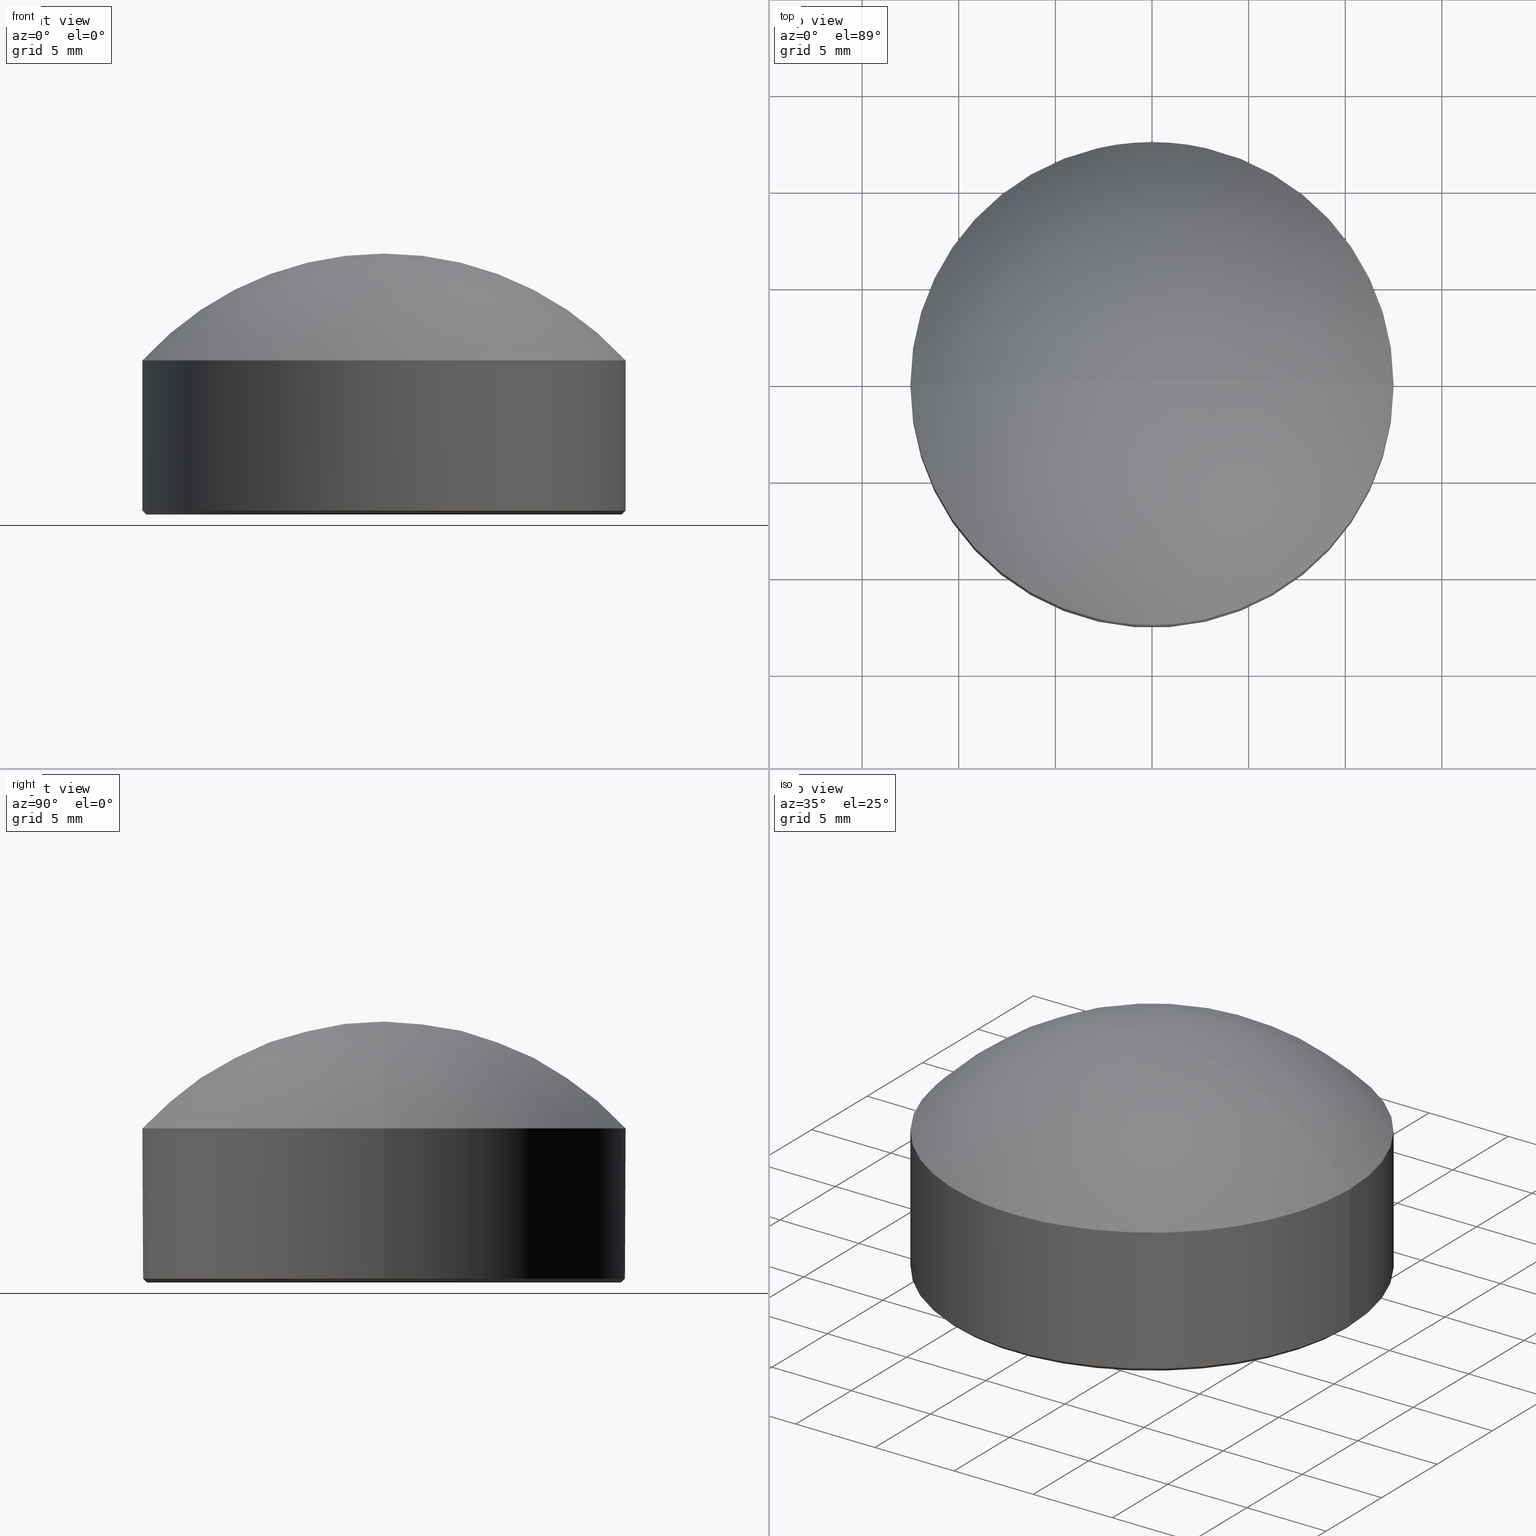
[diagram: canonical four-view strip — front | top / right | iso, engineering-drawing reading convention]
A machine part, canonical four-view strip (front | top / right | iso — engineering-drawing reading convention). The complete STEP part file that produces these views, byte-faithful:
ISO-10303-21;
HEADER;
FILE_DESCRIPTION (( 'STEP AP214' ),
    '1' );
FILE_NAME ('GLA11-025-18.75-H-VIS.STEP',
    '2024-08-09T08:37:02',
    ( 'Windows User' ),
    ( 'P R C' ),
    'SwSTEP 2.0',
    'SolidWorks 2022',
    '' );
FILE_SCHEMA (( 'AUTOMOTIVE_DESIGN' ));
ENDSEC;

DATA;
#1 = CARTESIAN_POINT ( 'NONE',  ( -12.50000000000000000, 0.000000000000000000, 7.969999999999999751 ) ) ;
#2 = LINE ( 'NONE', #100, #158 ) ;
#3 = DIRECTION ( 'NONE',  ( 0.000000000000000000, 0.000000000000000000, 1.000000000000000000 ) ) ;
#4 = CARTESIAN_POINT ( 'NONE',  ( 0.000000000000000000, 0.000000000000000000, 0.2000000000000074496 ) ) ;
#5 =( LENGTH_UNIT ( ) NAMED_UNIT ( * ) SI_UNIT ( .MILLI., .METRE. ) );
#6 = PRESENTATION_STYLE_ASSIGNMENT (( #206 ) ) ;
#7 = CARTESIAN_POINT ( 'NONE',  ( -12.29999999999999538, 1.518562030942717770E-15, 0.000000000000000000 ) ) ;
#8 = CIRCLE ( 'NONE', #137, 12.29999999999999538 ) ;
#9 = VERTEX_POINT ( 'NONE', #110 ) ;
#10 = APPLICATION_CONTEXT ( 'automotive_design' ) ;
#11 = ORIENTED_EDGE ( 'NONE', *, *, #167, .T. ) ;
#12 = MECHANICAL_DESIGN_GEOMETRIC_PRESENTATION_REPRESENTATION (  '', ( #208 ), #132 ) ;
#13 = CARTESIAN_POINT ( 'NONE',  ( 0.000000000000000000, 0.000000000000000000, -3.392486437613020378 ) ) ;
#14 = SPHERICAL_SURFACE ( 'NONE', #117, 16.89248643761301949 ) ;
#15 = ORIENTED_EDGE ( 'NONE', *, *, #32, .T. ) ;
#16 = CARTESIAN_POINT ( 'NONE',  ( 0.000000000000000000, 0.000000000000000000, 7.969999999999999751 ) ) ;
#17 = DIRECTION ( 'NONE',  ( 0.000000000000000000, 0.000000000000000000, 1.000000000000000000 ) ) ;
#18 = VECTOR ( 'NONE', #72, 1000.000000000000000 ) ;
#19 = EDGE_CURVE ( 'NONE', #40, #170, #193, .T. ) ;
#20 = FILL_AREA_STYLE ('',( #127 ) ) ;
#21 = PRODUCT_DEFINITION_SHAPE ( 'NONE', 'NONE',  #177 ) ;
#22 = ADVANCED_BREP_SHAPE_REPRESENTATION ( 'GLA11-025-18.75-H-VIS', ( #67, #24 ), #92 ) ;
#23 =( NAMED_UNIT ( * ) SI_UNIT ( $, .STERADIAN. ) SOLID_ANGLE_UNIT ( ) );
#24 = AXIS2_PLACEMENT_3D ( 'NONE', #104, #3, #85 ) ;
#25 = ORIENTED_EDGE ( 'NONE', *, *, #147, .F. ) ;
#26 = DIRECTION ( 'NONE',  ( -1.000000000000000000, 0.000000000000000000, 0.000000000000000000 ) ) ;
#27 = AXIS2_PLACEMENT_3D ( 'NONE', #13, #76, #134 ) ;
#28 = CARTESIAN_POINT ( 'NONE',  ( 12.50000000000000000, 1.530808498934191521E-15, 7.969999999999999751 ) ) ;
#29 = ADVANCED_FACE ( 'NONE', ( #114 ), #155, .T. ) ;
#30 = CARTESIAN_POINT ( 'NONE',  ( 12.29999999999999538, 0.000000000000000000, 0.000000000000000000 ) ) ;
#31 = DIRECTION ( 'NONE',  ( -1.224646799147353207E-16, -1.000000000000000000, -0.000000000000000000 ) ) ;
#32 = EDGE_CURVE ( 'NONE', #195, #214, #2, .T. ) ;
#33 = CARTESIAN_POINT ( 'NONE',  ( 0.000000000000000000, 0.000000000000000000, 0.000000000000000000 ) ) ;
#34 = APPLICATION_CONTEXT ( 'automotive_design' ) ;
#35 = AXIS2_PLACEMENT_3D ( 'NONE', #91, #187, #131 ) ;
#36 = FACE_OUTER_BOUND ( 'NONE', #154, .T. ) ;
#37 = AXIS2_PLACEMENT_3D ( 'NONE', #16, #166, #138 ) ;
#38 = ORIENTED_EDGE ( 'NONE', *, *, #147, .T. ) ;
#39 = EDGE_LOOP ( 'NONE', ( #165, #109, #150, #148 ) ) ;
#40 = VERTEX_POINT ( 'NONE', #81 ) ;
#41 = DIRECTION ( 'NONE',  ( 1.000000000000000000, 0.000000000000000000, 0.000000000000000000 ) ) ;
#42 = DIRECTION ( 'NONE',  ( 0.000000000000000000, 0.000000000000000000, 1.000000000000000000 ) ) ;
#43 = DIRECTION ( 'NONE',  ( -1.000000000000000000, 0.000000000000000000, 0.000000000000000000 ) ) ;
#44 = ORIENTED_EDGE ( 'NONE', *, *, #108, .F. ) ;
#45 = DIRECTION ( 'NONE',  ( -0.000000000000000000, -0.000000000000000000, 1.000000000000000000 ) ) ;
#46 = ORIENTED_EDGE ( 'NONE', *, *, #207, .T. ) ;
#47 = ADVANCED_FACE ( 'NONE', ( #66 ), #145, .T. ) ;
#48 = CIRCLE ( 'NONE', #179, 12.50000000000000000 ) ;
#49 = CARTESIAN_POINT ( 'NONE',  ( 0.000000000000000000, 0.000000000000000000, -3.392486437613020378 ) ) ;
#50 = VECTOR ( 'NONE', #157, 1000.000000000000000 ) ;
#51 = AXIS2_PLACEMENT_3D ( 'NONE', #200, #175, #41 ) ;
#52 = CIRCLE ( 'NONE', #69, 16.89248643761301949 ) ;
#53 = ORIENTED_EDGE ( 'NONE', *, *, #19, .F. ) ;
#54 = VERTEX_POINT ( 'NONE', #7 ) ;
#55 = CARTESIAN_POINT ( 'NONE',  ( 0.000000000000000000, 0.000000000000000000, -3.392486437613020378 ) ) ;
#56 = ORIENTED_EDGE ( 'NONE', *, *, #210, .F. ) ;
#57 = ORIENTED_EDGE ( 'NONE', *, *, #83, .T. ) ;
#58 = SPHERICAL_SURFACE ( 'NONE', #101, 16.89248643761301949 ) ;
#59 = CARTESIAN_POINT ( 'NONE',  ( 0.000000000000000000, 0.000000000000000000, 7.969999999999999751 ) ) ;
#60 = DIRECTION ( 'NONE',  ( 1.000000000000000000, -1.224646799147352961E-16, 0.000000000000000000 ) ) ;
#61 = ADVANCED_FACE ( 'NONE', ( #36 ), #182, .T. ) ;
#62 = CARTESIAN_POINT ( 'NONE',  ( 12.50000000000000000, 1.530808498934191521E-15, 7.969999999999999751 ) ) ;
#63 = CLOSED_SHELL ( 'NONE', ( #106, #143, #61, #29, #70, #116, #47 ) ) ;
#64 = CARTESIAN_POINT ( 'NONE',  ( 0.000000000000000000, 0.000000000000000000, 7.969999999999999751 ) ) ;
#65 = SURFACE_STYLE_FILL_AREA ( #190 ) ;
#66 = FACE_OUTER_BOUND ( 'NONE', #129, .T. ) ;
#67 = MANIFOLD_SOLID_BREP ( '����1', #63 ) ;
#68 =( LENGTH_UNIT ( ) NAMED_UNIT ( * ) SI_UNIT ( .MILLI., .METRE. ) );
#69 = AXIS2_PLACEMENT_3D ( 'NONE', #169, #31, #60 ) ;
#70 = ADVANCED_FACE ( 'NONE', ( #121 ), #211, .F. ) ;
#71 = ORIENTED_EDGE ( 'NONE', *, *, #113, .T. ) ;
#72 = DIRECTION ( 'NONE',  ( -0.000000000000000000, -0.000000000000000000, -1.000000000000000000 ) ) ;
#73 = EDGE_LOOP ( 'NONE', ( #44, #71, #38 ) ) ;
#74 = CARTESIAN_POINT ( 'NONE',  ( -1.034366472273142859E-15, 0.000000000000000000, 13.50000000000000000 ) ) ;
#75 = ORIENTED_EDGE ( 'NONE', *, *, #108, .T. ) ;
#76 = DIRECTION ( 'NONE',  ( 0.000000000000000000, 1.000000000000000000, 0.000000000000000000 ) ) ;
#77 = CIRCLE ( 'NONE', #27, 16.89248643761301949 ) ;
#78 = CARTESIAN_POINT ( 'NONE',  ( -12.50000000000000000, 1.530808498934191521E-15, 0.2000000000000074496 ) ) ;
#79 = MECHANICAL_DESIGN_GEOMETRIC_PRESENTATION_REPRESENTATION (  '', ( #189 ), #168 ) ;
#80 = LINE ( 'NONE', #28, #84 ) ;
#81 = CARTESIAN_POINT ( 'NONE',  ( -12.50000000000000000, 0.000000000000000000, 7.969999999999999751 ) ) ;
#82 = DIRECTION ( 'NONE',  ( 1.000000000000000000, 0.000000000000000000, 0.000000000000000000 ) ) ;
#83 = EDGE_CURVE ( 'NONE', #214, #9, #205, .T. ) ;
#84 = VECTOR ( 'NONE', #171, 1000.000000000000000 ) ;
#85 = DIRECTION ( 'NONE',  ( 1.000000000000000000, 0.000000000000000000, 0.000000000000000000 ) ) ;
#86 =( NAMED_UNIT ( * ) SI_UNIT ( $, .STERADIAN. ) SOLID_ANGLE_UNIT ( ) );
#87 = SURFACE_SIDE_STYLE ('',( #65 ) ) ;
#88 = SURFACE_SIDE_STYLE ('',( #125 ) ) ;
#89 = CIRCLE ( 'NONE', #37, 12.50000000000000000 ) ;
#90 = ORIENTED_EDGE ( 'NONE', *, *, #95, .T. ) ;
#91 = CARTESIAN_POINT ( 'NONE',  ( 0.000000000000000000, 0.000000000000000000, 0.2000000000000074496 ) ) ;
#92 =( GEOMETRIC_REPRESENTATION_CONTEXT ( 3 ) GLOBAL_UNCERTAINTY_ASSIGNED_CONTEXT ( ( #191 ) ) GLOBAL_UNIT_ASSIGNED_CONTEXT ( ( #68, #142, #86 ) ) REPRESENTATION_CONTEXT ( 'NONE', 'WORKASPACE' ) );
#93 = FACE_OUTER_BOUND ( 'NONE', #39, .T. ) ;
#94 = DIRECTION ( 'NONE',  ( -0.000000000000000000, -0.000000000000000000, -1.000000000000000000 ) ) ;
#95 = EDGE_CURVE ( 'NONE', #170, #214, #80, .T. ) ;
#96 = ORIENTED_EDGE ( 'NONE', *, *, #113, .F. ) ;
#97 = LINE ( 'NONE', #1, #18 ) ;
#98 = DIRECTION ( 'NONE',  ( -0.000000000000000000, -0.000000000000000000, -1.000000000000000000 ) ) ;
#99 = PRODUCT_CONTEXT ( 'NONE', #34, 'mechanical' ) ;
#100 = CARTESIAN_POINT ( 'NONE',  ( 12.50000000000000000, 0.000000000000000000, 0.2000000000000074496 ) ) ;
#101 = AXIS2_PLACEMENT_3D ( 'NONE', #55, #136, #26 ) ;
#102 = CARTESIAN_POINT ( 'NONE',  ( 12.50000000000000000, 1.530808498934191521E-15, 0.2000000000000074496 ) ) ;
#103 = APPLICATION_PROTOCOL_DEFINITION ( 'draft international standard', 'automotive_design', 1998, #34 ) ;
#104 = CARTESIAN_POINT ( 'NONE',  ( 0.000000000000000000, 0.000000000000000000, 0.000000000000000000 ) ) ;
#105 = DIRECTION ( 'NONE',  ( -0.000000000000000000, -0.000000000000000000, -1.000000000000000000 ) ) ;
#106 = ADVANCED_FACE ( 'NONE', ( #93 ), #183, .T. ) ;
#107 = AXIS2_PLACEMENT_3D ( 'NONE', #173, #17, #216 ) ;
#108 = EDGE_CURVE ( 'NONE', #170, #184, #52, .T. ) ;
#109 = ORIENTED_EDGE ( 'NONE', *, *, #159, .T. ) ;
#110 = CARTESIAN_POINT ( 'NONE',  ( -12.50000000000000000, 0.000000000000000000, 0.2000000000000074496 ) ) ;
#111 = FACE_OUTER_BOUND ( 'NONE', #73, .T. ) ;
#112 = FACE_OUTER_BOUND ( 'NONE', #203, .T. ) ;
#113 = EDGE_CURVE ( 'NONE', #170, #40, #89, .T. ) ;
#114 = FACE_OUTER_BOUND ( 'NONE', #196, .T. ) ;
#115 = DIRECTION ( 'NONE',  ( 1.000000000000000000, 0.000000000000000000, 0.000000000000000000 ) ) ;
#116 = ADVANCED_FACE ( 'NONE', ( #111 ), #14, .T. ) ;
#117 = AXIS2_PLACEMENT_3D ( 'NONE', #49, #213, #43 ) ;
#118 = PRESENTATION_LAYER_ASSIGNMENT (  '', '', ( #189 ) ) ;
#119 = UNCERTAINTY_MEASURE_WITH_UNIT (LENGTH_MEASURE( 1.000000000000000082E-05 ), #192, 'distance_accuracy_value', 'NONE');
#120 = DIRECTION ( 'NONE',  ( 0.7071067811865444641, 0.000000000000000000, 0.7071067811865505703 ) ) ;
#121 = FACE_OUTER_BOUND ( 'NONE', #197, .T. ) ;
#122 = SHAPE_DEFINITION_REPRESENTATION ( #21, #22 ) ;
#123 = DIRECTION ( 'NONE',  ( 1.000000000000000000, 0.000000000000000000, 0.000000000000000000 ) ) ;
#124 = PRESENTATION_LAYER_ASSIGNMENT (  '', '', ( #208 ) ) ;
#125 = SURFACE_STYLE_FILL_AREA ( #20 ) ;
#126 = UNCERTAINTY_MEASURE_WITH_UNIT (LENGTH_MEASURE( 1.000000000000000082E-05 ), #5, 'distance_accuracy_value', 'NONE');
#127 = FILL_AREA_STYLE_COLOUR ( '', #128 ) ;
#128 = COLOUR_RGB ( '',1.000000000000000000, 1.000000000000000000, 1.000000000000000000 ) ;
#129 = EDGE_LOOP ( 'NONE', ( #152, #56, #15, #133 ) ) ;
#130 = ORIENTED_EDGE ( 'NONE', *, *, #204, .T. ) ;
#131 = DIRECTION ( 'NONE',  ( 1.000000000000000000, 0.000000000000000000, 0.000000000000000000 ) ) ;
#132 =( GEOMETRIC_REPRESENTATION_CONTEXT ( 3 ) GLOBAL_UNCERTAINTY_ASSIGNED_CONTEXT ( ( #126 ) ) GLOBAL_UNIT_ASSIGNED_CONTEXT ( ( #5, #144, #140 ) ) REPRESENTATION_CONTEXT ( 'NONE', 'WORKASPACE' ) );
#133 = ORIENTED_EDGE ( 'NONE', *, *, #207, .F. ) ;
#134 = DIRECTION ( 'NONE',  ( 0.000000000000000000, 0.000000000000000000, 1.000000000000000000 ) ) ;
#135 = DIRECTION ( 'NONE',  ( -0.000000000000000000, -0.000000000000000000, -1.000000000000000000 ) ) ;
#136 = DIRECTION ( 'NONE',  ( -0.000000000000000000, -1.000000000000000000, 0.000000000000000000 ) ) ;
#137 = AXIS2_PLACEMENT_3D ( 'NONE', #33, #98, #82 ) ;
#138 = DIRECTION ( 'NONE',  ( 1.000000000000000000, 0.000000000000000000, 0.000000000000000000 ) ) ;
#139 = APPLICATION_PROTOCOL_DEFINITION ( 'draft international standard', 'automotive_design', 1998, #10 ) ;
#140 =( NAMED_UNIT ( * ) SI_UNIT ( $, .STERADIAN. ) SOLID_ANGLE_UNIT ( ) );
#141 = AXIS2_PLACEMENT_3D ( 'NONE', #4, #162, #123 ) ;
#142 =( NAMED_UNIT ( * ) PLANE_ANGLE_UNIT ( ) SI_UNIT ( $, .RADIAN. ) );
#143 = ADVANCED_FACE ( 'NONE', ( #112 ), #58, .T. ) ;
#144 =( NAMED_UNIT ( * ) PLANE_ANGLE_UNIT ( ) SI_UNIT ( $, .RADIAN. ) );
#145 = CONICAL_SURFACE ( 'NONE', #141, 12.50000000000000000, 0.7853981633974439491 ) ;
#146 = SURFACE_STYLE_USAGE ( .BOTH. , #88 ) ;
#147 = EDGE_CURVE ( 'NONE', #40, #184, #77, .T. ) ;
#148 = ORIENTED_EDGE ( 'NONE', *, *, #32, .F. ) ;
#149 = CIRCLE ( 'NONE', #185, 12.29999999999999538 ) ;
#150 = ORIENTED_EDGE ( 'NONE', *, *, #83, .F. ) ;
#151 = CARTESIAN_POINT ( 'NONE',  ( 0.000000000000000000, 0.000000000000000000, 0.000000000000000000 ) ) ;
#152 = ORIENTED_EDGE ( 'NONE', *, *, #159, .F. ) ;
#153 = ORIENTED_EDGE ( 'NONE', *, *, #167, .F. ) ;
#154 = EDGE_LOOP ( 'NONE', ( #96, #90, #57, #153 ) ) ;
#155 = CYLINDRICAL_SURFACE ( 'NONE', #174, 12.50000000000000000 ) ;
#156 = AXIS2_PLACEMENT_3D ( 'NONE', #199, #42, #201 ) ;
#157 = DIRECTION ( 'NONE',  ( -0.7071067811865444641, 8.659560562354895880E-17, 0.7071067811865505703 ) ) ;
#158 = VECTOR ( 'NONE', #120, 1000.000000000000000 ) ;
#159 = EDGE_CURVE ( 'NONE', #54, #9, #186, .T. ) ;
#160 = FILL_AREA_STYLE_COLOUR ( '', #215 ) ;
#161 = PRESENTATION_STYLE_ASSIGNMENT (( #146 ) ) ;
#162 = DIRECTION ( 'NONE',  ( -0.000000000000000000, -0.000000000000000000, 1.000000000000000000 ) ) ;
#163 = PRODUCT ( 'GLA11-025-18.75-H-VIS', 'GLA11-025-18.75-H-VIS', '', ( #99 ) ) ;
#164 = AXIS2_PLACEMENT_3D ( 'NONE', #64, #105, #180 ) ;
#165 = ORIENTED_EDGE ( 'NONE', *, *, #204, .F. ) ;
#166 = DIRECTION ( 'NONE',  ( 0.000000000000000000, 0.000000000000000000, 1.000000000000000000 ) ) ;
#167 = EDGE_CURVE ( 'NONE', #40, #9, #97, .T. ) ;
#168 =( GEOMETRIC_REPRESENTATION_CONTEXT ( 3 ) GLOBAL_UNCERTAINTY_ASSIGNED_CONTEXT ( ( #119 ) ) GLOBAL_UNIT_ASSIGNED_CONTEXT ( ( #192, #209, #23 ) ) REPRESENTATION_CONTEXT ( 'NONE', 'WORKASPACE' ) );
#169 = CARTESIAN_POINT ( 'NONE',  ( 0.000000000000000000, 0.000000000000000000, -3.392486437613020378 ) ) ;
#170 = VERTEX_POINT ( 'NONE', #62 ) ;
#171 = DIRECTION ( 'NONE',  ( -0.000000000000000000, -0.000000000000000000, -1.000000000000000000 ) ) ;
#172 = ORIENTED_EDGE ( 'NONE', *, *, #19, .T. ) ;
#173 = CARTESIAN_POINT ( 'NONE',  ( 0.000000000000000000, 0.000000000000000000, 0.000000000000000000 ) ) ;
#174 = AXIS2_PLACEMENT_3D ( 'NONE', #59, #135, #178 ) ;
#175 = DIRECTION ( 'NONE',  ( -0.000000000000000000, -0.000000000000000000, 1.000000000000000000 ) ) ;
#176 = PRODUCT_DEFINITION_FORMATION_WITH_SPECIFIED_SOURCE ( '�κ�', '', #163, .NOT_KNOWN. ) ;
#177 = PRODUCT_DEFINITION ( 'δ֪', '', #176, #181 ) ;
#178 = DIRECTION ( 'NONE',  ( -1.000000000000000000, 0.000000000000000000, 0.000000000000000000 ) ) ;
#179 = AXIS2_PLACEMENT_3D ( 'NONE', #202, #45, #115 ) ;
#180 = DIRECTION ( 'NONE',  ( -1.000000000000000000, 0.000000000000000000, 0.000000000000000000 ) ) ;
#181 = PRODUCT_DEFINITION_CONTEXT ( 'detailed design', #10, 'design' ) ;
#182 = CYLINDRICAL_SURFACE ( 'NONE', #164, 12.50000000000000000 ) ;
#183 = CONICAL_SURFACE ( 'NONE', #35, 12.50000000000000000, 0.7853981633974439491 ) ;
#184 = VERTEX_POINT ( 'NONE', #74 ) ;
#185 = AXIS2_PLACEMENT_3D ( 'NONE', #151, #94, #198 ) ;
#186 = LINE ( 'NONE', #78, #50 ) ;
#187 = DIRECTION ( 'NONE',  ( -0.000000000000000000, -0.000000000000000000, 1.000000000000000000 ) ) ;
#188 = ORIENTED_EDGE ( 'NONE', *, *, #95, .F. ) ;
#189 = STYLED_ITEM ( 'NONE', ( #161 ), #67 ) ;
#190 = FILL_AREA_STYLE ('',( #160 ) ) ;
#191 = UNCERTAINTY_MEASURE_WITH_UNIT (LENGTH_MEASURE( 1.000000000000000082E-05 ), #68, 'distance_accuracy_value', 'NONE');
#192 =( LENGTH_UNIT ( ) NAMED_UNIT ( * ) SI_UNIT ( .MILLI., .METRE. ) );
#193 = CIRCLE ( 'NONE', #156, 12.50000000000000000 ) ;
#194 = PRODUCT_RELATED_PRODUCT_CATEGORY ( 'part', '', ( #163 ) ) ;
#195 = VERTEX_POINT ( 'NONE', #30 ) ;
#196 = EDGE_LOOP ( 'NONE', ( #188, #53, #11, #46 ) ) ;
#197 = EDGE_LOOP ( 'NONE', ( #212, #130 ) ) ;
#198 = DIRECTION ( 'NONE',  ( 1.000000000000000000, 0.000000000000000000, 0.000000000000000000 ) ) ;
#199 = CARTESIAN_POINT ( 'NONE',  ( 0.000000000000000000, 0.000000000000000000, 7.969999999999999751 ) ) ;
#200 = CARTESIAN_POINT ( 'NONE',  ( 0.000000000000000000, 0.000000000000000000, 0.2000000000000074496 ) ) ;
#201 = DIRECTION ( 'NONE',  ( 1.000000000000000000, 0.000000000000000000, 0.000000000000000000 ) ) ;
#202 = CARTESIAN_POINT ( 'NONE',  ( 0.000000000000000000, 0.000000000000000000, 0.2000000000000074496 ) ) ;
#203 = EDGE_LOOP ( 'NONE', ( #172, #75, #25 ) ) ;
#204 = EDGE_CURVE ( 'NONE', #54, #195, #149, .T. ) ;
#205 = CIRCLE ( 'NONE', #51, 12.50000000000000000 ) ;
#206 = SURFACE_STYLE_USAGE ( .BOTH. , #87 ) ;
#207 = EDGE_CURVE ( 'NONE', #9, #214, #48, .T. ) ;
#208 = STYLED_ITEM ( 'NONE', ( #6 ), #22 ) ;
#209 =( NAMED_UNIT ( * ) PLANE_ANGLE_UNIT ( ) SI_UNIT ( $, .RADIAN. ) );
#210 = EDGE_CURVE ( 'NONE', #195, #54, #8, .T. ) ;
#211 = PLANE ( 'NONE',  #107 ) ;
#212 = ORIENTED_EDGE ( 'NONE', *, *, #210, .T. ) ;
#213 = DIRECTION ( 'NONE',  ( -0.000000000000000000, -1.000000000000000000, 0.000000000000000000 ) ) ;
#214 = VERTEX_POINT ( 'NONE', #102 ) ;
#215 = COLOUR_RGB ( '',1.000000000000000000, 1.000000000000000000, 1.000000000000000000 ) ;
#216 = DIRECTION ( 'NONE',  ( 1.000000000000000000, 0.000000000000000000, -0.000000000000000000 ) ) ;
ENDSEC;
END-ISO-10303-21;
